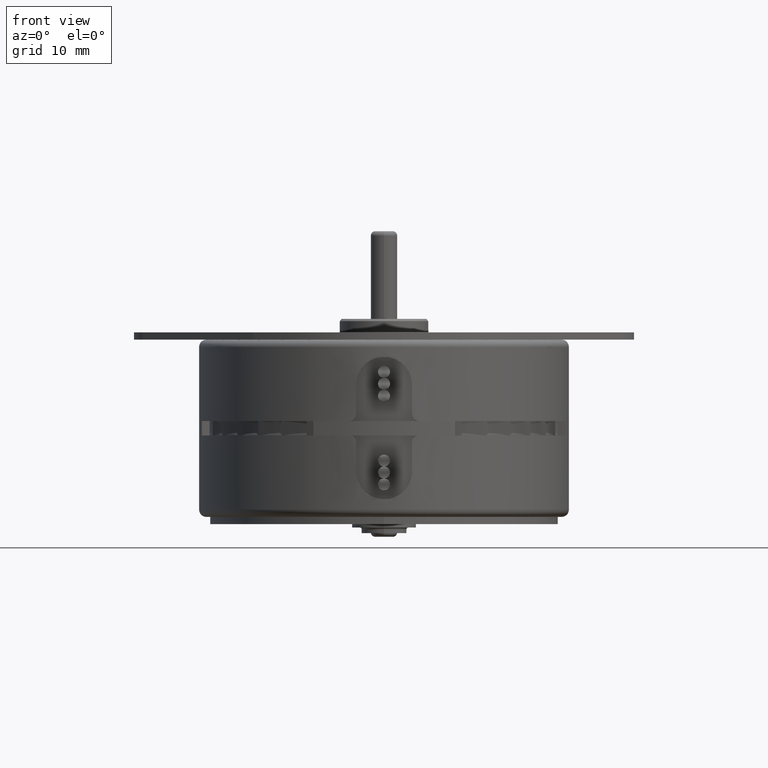
[diagram: clean part render]
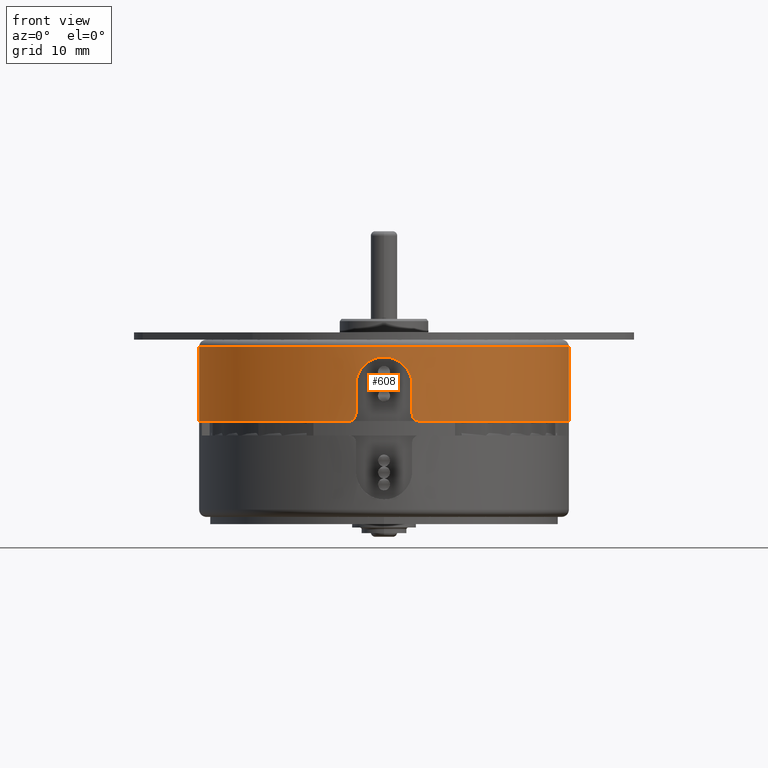
[diagram: same view with one face highlighted and labeled with its STEP entity id]
A machine part, front view. The second image highlights one B-rep face of the part: STEP entity #608.
In plain terms, the highlighted cylindrical surface (partial cylindrical patch) has radius 20.8763 mm, axis along (0, 0, -1).
Its self-contained STEP definition (entity closure, byte-faithful):
#94=CARTESIAN_POINT('',(3.62E-1,0.E0,0.E0));
#95=DIRECTION('',(-1.E0,0.E0,0.E0));
#96=DIRECTION('',(0.E0,0.E0,1.E0));
#97=AXIS2_PLACEMENT_3D('',#94,#95,#96);
#113=DIRECTION('',(-1.E0,0.E0,0.E0));
#114=VECTOR('',#113,3.3E-1);
#115=CARTESIAN_POINT('',(3.62E-1,0.E0,-8.219E-1));
#116=LINE('',#115,#114);
#117=CARTESIAN_POINT('',(3.62E-1,8.069594847327E-1,-1.56E-1));
#118=CARTESIAN_POINT('',(3.62E-1,8.075076187062E-1,-1.531646031485E-1));
#119=CARTESIAN_POINT('',(3.612448620011E-1,8.085249093821E-1,
-1.477446502144E-1));
#120=CARTESIAN_POINT('',(3.580751492899E-1,8.098683297908E-1,
-1.401787808216E-1));
#121=CARTESIAN_POINT('',(3.530851117632E-1,8.109498628189E-1,
-1.337571851436E-1));
#122=CARTESIAN_POINT('',(3.466609215442E-1,8.117432427694E-1,
-1.288332295218E-1));
#123=CARTESIAN_POINT('',(3.390788455909E-1,8.122297035888E-1,
-1.257132406101E-1));
#124=CARTESIAN_POINT('',(3.337647068746E-1,8.123389748129E-1,-1.25E-1));
#125=CARTESIAN_POINT('',(3.31E-1,8.123389748129E-1,-1.25E-1));
#127=DIRECTION('',(-1.E0,0.E0,0.E0));
#128=VECTOR('',#127,1.29E-1);
#129=CARTESIAN_POINT('',(3.31E-1,8.123389748129E-1,-1.25E-1));
#130=LINE('',#129,#128);
#131=CARTESIAN_POINT('',(2.02E-1,8.123389748129E-1,-1.25E-1));
#132=CARTESIAN_POINT('',(1.931386406383E-1,8.123389748129E-1,-1.25E-1));
#133=CARTESIAN_POINT('',(1.758184698209E-1,8.126244322767E-1,
-1.231664123727E-1));
#134=CARTESIAN_POINT('',(1.504158659946E-1,8.138530591624E-1,
-1.148989687087E-1));
#135=CARTESIAN_POINT('',(1.274806343077E-1,8.156580453555E-1,
-1.015124366379E-1));
#136=CARTESIAN_POINT('',(1.079608274575E-1,8.177038054156E-1,
-8.371610264425E-2));
#137=CARTESIAN_POINT('',(9.267940811993E-2,8.196256876918E-1,
-6.252094451858E-2));
#138=CARTESIAN_POINT('',(8.197593376719E-2,8.211510535424E-1,
-3.808733078306E-2));
#139=CARTESIAN_POINT('',(7.672435781720E-2,8.219388178095E-1,
-1.221497039142E-2));
#140=CARTESIAN_POINT('',(7.676513812744E-2,8.219326398543E-1,
1.256263840656E-2));
#141=CARTESIAN_POINT('',(8.204270654400E-2,8.211411278495E-1,
3.821219069912E-2));
#142=CARTESIAN_POINT('',(9.252855793304E-2,8.196475014164E-1,
6.219532318112E-2));
#143=CARTESIAN_POINT('',(1.076084117097E-1,8.177450227592E-1,
8.332288466449E-2));
#144=CARTESIAN_POINT('',(1.271936401934E-1,8.156823497444E-1,
1.013317278837E-1));
#145=CARTESIAN_POINT('',(1.505004755589E-1,8.138432270824E-1,
1.149731924768E-1));
#146=CARTESIAN_POINT('',(1.762168037715E-1,8.126112655508E-1,
1.232513936953E-1));
#147=CARTESIAN_POINT('',(1.933207839943E-1,8.123389748129E-1,1.25E-1));
#148=CARTESIAN_POINT('',(2.02E-1,8.123389748129E-1,1.25E-1));
#150=DIRECTION('',(1.E0,0.E0,0.E0));
#151=VECTOR('',#150,1.29E-1);
#152=CARTESIAN_POINT('',(2.02E-1,8.123389748129E-1,1.25E-1));
#153=LINE('',#152,#151);
#154=CARTESIAN_POINT('',(3.31E-1,8.123389748129E-1,1.25E-1));
#155=CARTESIAN_POINT('',(3.337897558211E-1,8.123389748129E-1,1.25E-1));
#156=CARTESIAN_POINT('',(3.391371338433E-1,8.122276073904E-1,
1.257269403296E-1));
#157=CARTESIAN_POINT('',(3.467019437519E-1,8.117388983662E-1,
1.288605383563E-1));
#158=CARTESIAN_POINT('',(3.530923934567E-1,8.109482133782E-1,
1.337670120618E-1));
#159=CARTESIAN_POINT('',(3.580799771873E-1,8.098669457685E-1,
1.401867489856E-1));
#160=CARTESIAN_POINT('',(3.612446802617E-1,8.085244037725E-1,
1.477473214315E-1));
#161=CARTESIAN_POINT('',(3.62E-1,8.075074586953E-1,1.531654308553E-1));
#162=CARTESIAN_POINT('',(3.62E-1,8.069594847327E-1,1.56E-1));
#164=DIRECTION('',(-1.E0,0.E0,0.E0));
#165=VECTOR('',#164,3.3E-1);
#166=CARTESIAN_POINT('',(3.62E-1,0.E0,8.219E-1));
#167=LINE('',#166,#165);
#173=CARTESIAN_POINT('',(3.2E-2,0.E0,0.E0));
#174=DIRECTION('',(1.E0,0.E0,0.E0));
#175=DIRECTION('',(0.E0,0.E0,-1.E0));
#176=AXIS2_PLACEMENT_3D('',#173,#174,#175);
#343=CARTESIAN_POINT('',(3.62E-1,0.E0,0.E0));
#344=DIRECTION('',(-1.E0,0.E0,0.E0));
#345=DIRECTION('',(0.E0,9.818219792343E-1,-1.898041124224E-1));
#346=AXIS2_PLACEMENT_3D('',#343,#344,#345);
#379=CARTESIAN_POINT('',(3.31E-1,8.123389748129E-1,-1.25E-1));
#380=VERTEX_POINT('',#379);
#381=VERTEX_POINT('',#117);
#382=CARTESIAN_POINT('',(2.02E-1,8.123389748129E-1,-1.25E-1));
#383=VERTEX_POINT('',#382);
#384=CARTESIAN_POINT('',(2.02E-1,8.123389748129E-1,1.25E-1));
#385=VERTEX_POINT('',#384);
#386=CARTESIAN_POINT('',(3.31E-1,8.123389748129E-1,1.25E-1));
#387=VERTEX_POINT('',#386);
#388=CARTESIAN_POINT('',(3.62E-1,8.069594847327E-1,1.56E-1));
#389=VERTEX_POINT('',#388);
#390=CARTESIAN_POINT('',(3.62E-1,0.E0,-8.219E-1));
#391=VERTEX_POINT('',#390);
#392=CARTESIAN_POINT('',(3.62E-1,0.E0,8.219E-1));
#393=VERTEX_POINT('',#392);
#394=CARTESIAN_POINT('',(3.2E-2,0.E0,8.219E-1));
#395=VERTEX_POINT('',#394);
#396=CARTESIAN_POINT('',(3.2E-2,0.E0,-8.219E-1));
#397=VERTEX_POINT('',#396);
#589=CARTESIAN_POINT('',(-1.81E-2,0.E0,0.E0));
#590=DIRECTION('',(1.E0,0.E0,0.E0));
#591=DIRECTION('',(0.E0,0.E0,1.E0));
#592=AXIS2_PLACEMENT_3D('',#589,#590,#591);
#593=CYLINDRICAL_SURFACE('',#592,8.219E-1);
#594=ORIENTED_EDGE('',*,*,#482,.T.);
#595=ORIENTED_EDGE('',*,*,#497,.T.);
#596=ORIENTED_EDGE('',*,*,#511,.T.);
#597=ORIENTED_EDGE('',*,*,#525,.T.);
#598=ORIENTED_EDGE('',*,*,#539,.T.);
#599=ORIENTED_EDGE('',*,*,#554,.F.);
#600=ORIENTED_EDGE('',*,*,#579,.T.);
#602=ORIENTED_EDGE('',*,*,#601,.F.);
#603=ORIENTED_EDGE('',*,*,#582,.F.);
#605=ORIENTED_EDGE('',*,*,#604,.F.);
#606=EDGE_LOOP('',(#594,#595,#596,#597,#598,#599,#600,#602,#603,#605));
#607=FACE_OUTER_BOUND('',#606,.F.);
#608=ADVANCED_FACE('',(#607),#593,.T.);
#98=CIRCLE('',#97,8.219E-1);
#126=B_SPLINE_CURVE_WITH_KNOTS('',3,(#117,#118,#119,#120,#121,#122,#123,#124,
#125),.UNSPECIFIED.,.F.,.F.,(4,1,1,1,1,1,4),(0.E0,1.666666666667E-1,
3.333333333333E-1,5.E-1,6.666666666667E-1,8.333333333333E-1,1.E0),
.UNSPECIFIED.);
#149=B_SPLINE_CURVE_WITH_KNOTS('',3,(#131,#132,#133,#134,#135,#136,#137,#138,
#139,#140,#141,#142,#143,#144,#145,#146,#147,#148),.UNSPECIFIED.,.F.,.F.,(4,1,1,
1,1,1,1,1,1,1,1,1,1,1,1,4),(0.E0,6.666666666667E-2,1.333333333333E-1,2.E-1,
2.666666666667E-1,3.333333333333E-1,4.E-1,4.666666666667E-1,5.333333333333E-1,
6.E-1,6.666666666667E-1,7.333333333333E-1,8.E-1,8.666666666667E-1,
9.333333333333E-1,1.E0),.UNSPECIFIED.);
#163=B_SPLINE_CURVE_WITH_KNOTS('',3,(#154,#155,#156,#157,#158,#159,#160,#161,
#162),.UNSPECIFIED.,.F.,.F.,(4,1,1,1,1,1,4),(0.E0,1.666666666667E-1,
3.333333333333E-1,5.E-1,6.666666666667E-1,8.333333333333E-1,1.E0),
.UNSPECIFIED.);
#177=CIRCLE('',#176,8.219E-1);
#347=CIRCLE('',#346,8.219E-1);
#482=EDGE_CURVE('',#381,#380,#126,.T.);
#497=EDGE_CURVE('',#380,#383,#130,.T.);
#511=EDGE_CURVE('',#383,#385,#149,.T.);
#525=EDGE_CURVE('',#385,#387,#153,.T.);
#539=EDGE_CURVE('',#387,#389,#163,.T.);
#554=EDGE_CURVE('',#393,#389,#98,.T.);
#579=EDGE_CURVE('',#393,#395,#167,.T.);
#582=EDGE_CURVE('',#391,#397,#116,.T.);
#601=EDGE_CURVE('',#397,#395,#177,.T.);
#604=EDGE_CURVE('',#381,#391,#347,.T.);